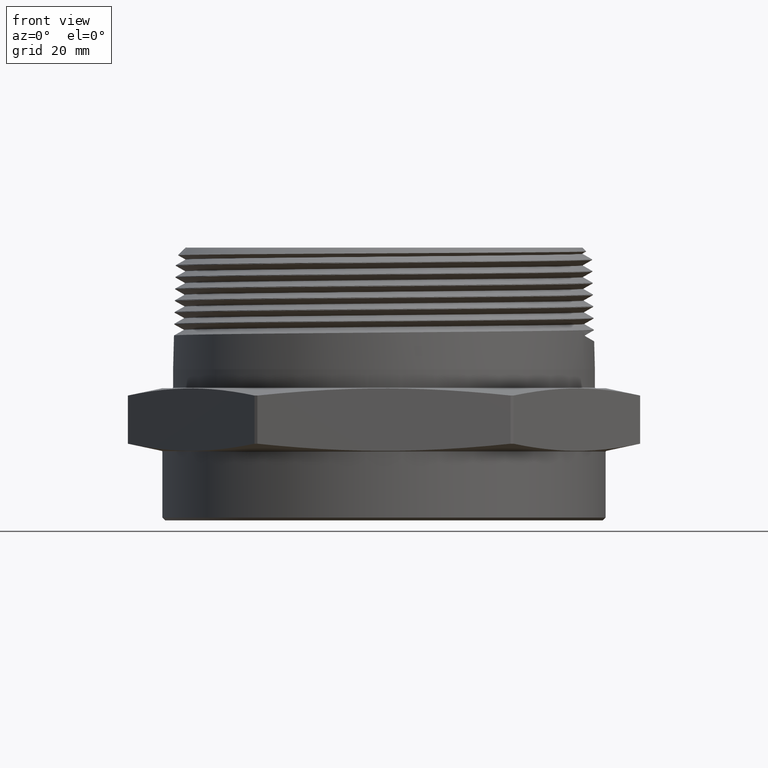
[diagram: clean part render]
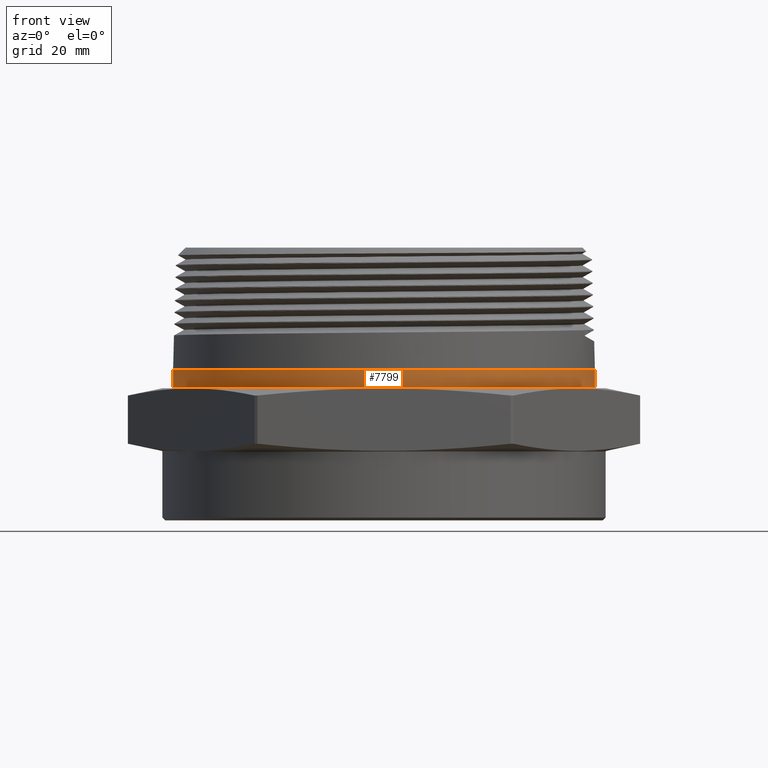
[diagram: same view with one face highlighted and labeled with its STEP entity id]
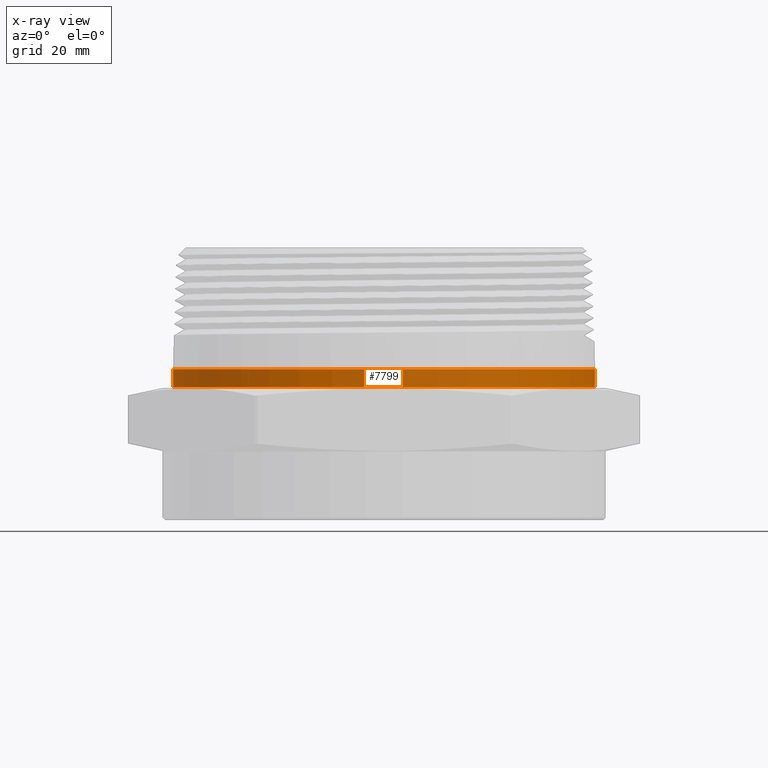
[diagram: x-ray of the same camera — body ghosted, the highlighted face saturated]
A machine part, front view. The second image highlights one B-rep face of the part: STEP entity #7799.
The next image is the same camera in x-ray: the body ghosted, the highlighted face saturated — about 0% of this face is hidden behind the body in this view.
In plain terms, the highlighted cylindrical surface (partial cylindrical patch) has radius 57.15 mm, axis along (-0, -0, -1).
Its self-contained STEP definition (entity closure, byte-faithful):
#666 = AXIS2_PLACEMENT_3D ( 'NONE', #2490, #2491, #2492 ) ;
#692 = AXIS2_PLACEMENT_3D ( 'NONE', #1539, #1540, #1541 ) ;
#703 = AXIS2_PLACEMENT_3D ( 'NONE', #4161, #4162, #4160 ) ;
#1539 = CARTESIAN_POINT ( 'NONE',  ( 0.0000000000000000000, 0.0000000000000000000, 0.8719703149742851200 ) ) ;
#1540 = DIRECTION ( 'NONE',  ( 0.0000000000000000000, 0.0000000000000000000, 1.000000000000000000 ) ) ;
#1541 = DIRECTION ( 'NONE',  ( -1.000000000000000000, 0.0000000000000000000, 0.0000000000000000000 ) ) ;
#1961 = VERTEX_POINT ( 'NONE', #2651 ) ;
#1962 = VERTEX_POINT ( 'NONE', #2652 ) ;
#2018 = VERTEX_POINT ( 'NONE', #2708 ) ;
#2022 = VERTEX_POINT ( 'NONE', #2712 ) ;
#2149 = EDGE_LOOP ( 'NONE', ( #7859, #7860, #7861, #7862 ) ) ;
#2359 = DIRECTION ( 'NONE',  ( -0.0000000000000000000, -0.0000000000000000000, -1.000000000000000000 ) ) ;
#2363 = DIRECTION ( 'NONE',  ( -0.0000000000000000000, -0.0000000000000000000, -1.000000000000000000 ) ) ;
#2364 = CARTESIAN_POINT ( 'NONE',  ( 2.250000000000000400, 2.755455298081544300E-016, 2.169999999999999900 ) ) ;
#2368 = CARTESIAN_POINT ( 'NONE',  ( -2.250000000000000400, 0.0000000000000000000, 2.169999999999999900 ) ) ;
#2490 = CARTESIAN_POINT ( 'NONE',  ( 0.0000000000000000000, 0.0000000000000000000, 0.6800000000000001600 ) ) ;
#2491 = DIRECTION ( 'NONE',  ( -0.0000000000000000000, 0.0000000000000000000, 1.000000000000000000 ) ) ;
#2492 = DIRECTION ( 'NONE',  ( 1.000000000000000000, 0.0000000000000000000, 0.0000000000000000000 ) ) ;
#2651 = CARTESIAN_POINT ( 'NONE',  ( 2.250000000000000400, 2.755455298081544800E-016, 0.8719703149742851200 ) ) ;
#2652 = CARTESIAN_POINT ( 'NONE',  ( -2.250000000000000400, 0.0000000000000000000, 0.8719703149742851200 ) ) ;
#2708 = CARTESIAN_POINT ( 'NONE',  ( -2.250000000000000400, 0.0000000000000000000, 0.6800000000000001600 ) ) ;
#2712 = CARTESIAN_POINT ( 'NONE',  ( 2.250000000000000400, 2.755455298081544300E-016, 0.6800000000000001600 ) ) ;
#3300 = LINE ( 'NONE', #2364, #3301 ) ;
#3301 = VECTOR ( 'NONE', #2359, 39.37007874015748100 ) ;
#3302 = LINE ( 'NONE', #2368, #3307 ) ;
#3307 = VECTOR ( 'NONE', #2363, 39.37007874015748100 ) ;
#3392 = CIRCLE ( 'NONE', #692, 2.250000000000000400 ) ;
#3417 = CYLINDRICAL_SURFACE ( 'NONE', #703, 2.250000000000000400 ) ;
#3437 = FACE_OUTER_BOUND ( 'NONE', #2149, .T. ) ;
#3635 = EDGE_CURVE ( 'NONE', #2018, #2022, #8052, .T. ) ;
#3671 = EDGE_CURVE ( 'NONE', #1961, #2022, #3300, .T. ) ;
#3673 = EDGE_CURVE ( 'NONE', #1962, #2018, #3302, .T. ) ;
#3728 = EDGE_CURVE ( 'NONE', #1962, #1961, #3392, .T. ) ;
#4160 = DIRECTION ( 'NONE',  ( -1.000000000000000000, 0.0000000000000000000, 0.0000000000000000000 ) ) ;
#4161 = CARTESIAN_POINT ( 'NONE',  ( 0.0000000000000000000, 0.0000000000000000000, 2.169999999999999900 ) ) ;
#4162 = DIRECTION ( 'NONE',  ( -0.0000000000000000000, -0.0000000000000000000, -1.000000000000000000 ) ) ;
#7799 = ADVANCED_FACE ( 'NONE', ( #3437 ), #3417, .T. ) ;
#7859 = ORIENTED_EDGE ( 'NONE', *, *, #3671, .F. ) ;
#7860 = ORIENTED_EDGE ( 'NONE', *, *, #3728, .F. ) ;
#7861 = ORIENTED_EDGE ( 'NONE', *, *, #3673, .T. ) ;
#7862 = ORIENTED_EDGE ( 'NONE', *, *, #3635, .T. ) ;
#8052 = CIRCLE ( 'NONE', #666, 2.250000000000000400 ) ;